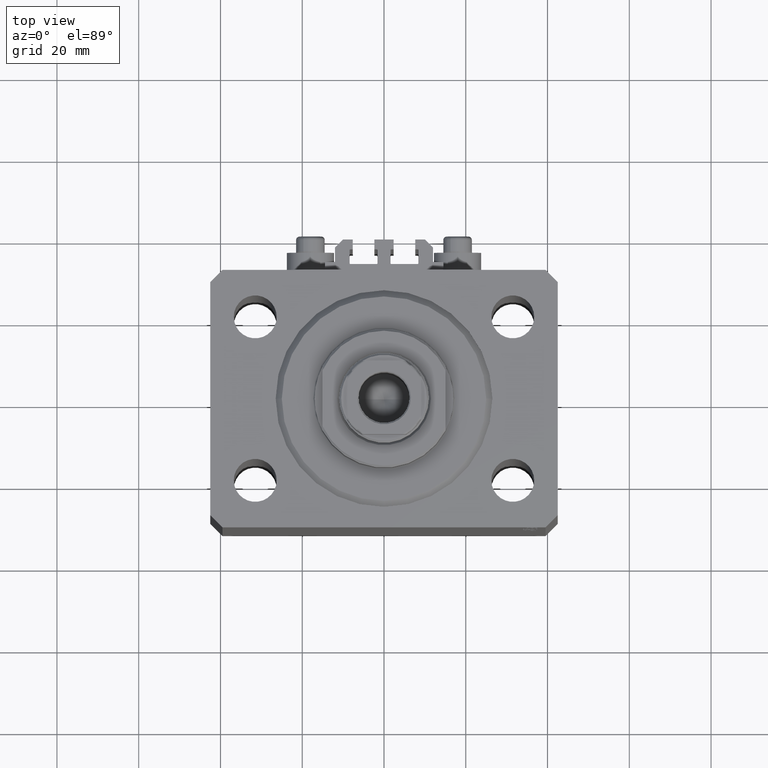
[diagram: clean part render]
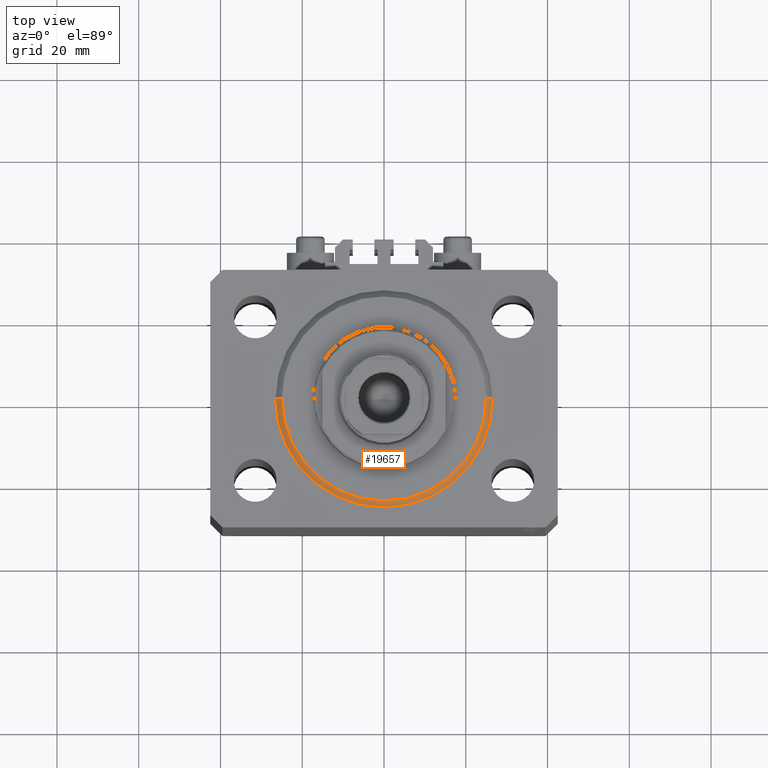
[diagram: same view with one face highlighted and labeled with its STEP entity id]
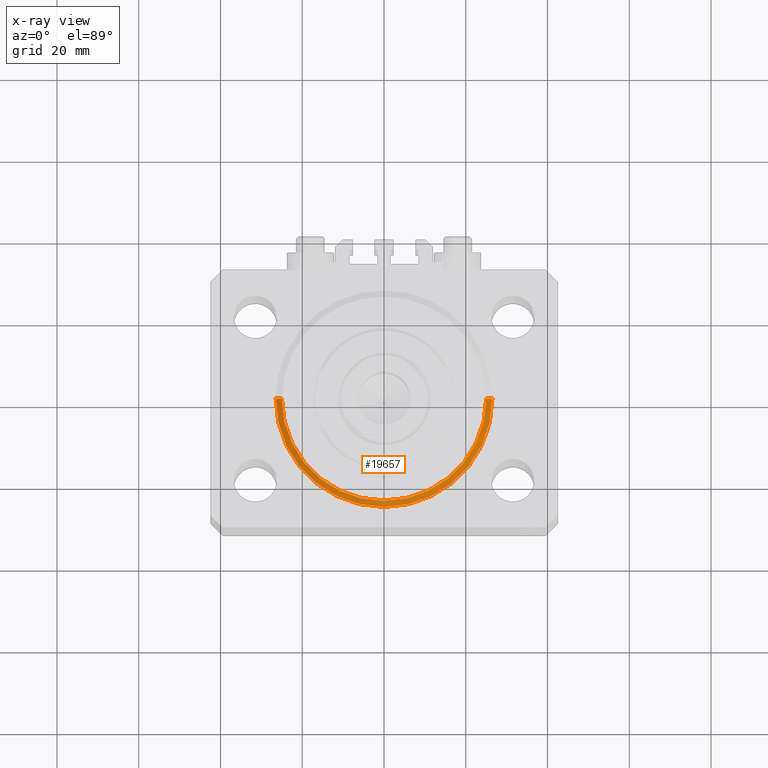
[diagram: x-ray of the same camera — body ghosted, the highlighted face saturated]
A machine part, top view. The second image highlights one B-rep face of the part: STEP entity #19657.
The next image is the same camera in x-ray: the body ghosted, the highlighted face saturated — about 0% of this face is hidden behind the body in this view.
In plain terms, the highlighted conical surface has half-angle 45 deg.
Its self-contained STEP definition (entity closure, byte-faithful):
#441 = CARTESIAN_POINT ( 'NONE',  ( -26.50000000000000355, 3.245314017740486554E-15, 1.500000000000018652 ) ) ;
#1043 = EDGE_CURVE ( 'NONE', #23999, #30568, #23873, .T. ) ;
#2196 = CARTESIAN_POINT ( 'NONE',  ( 26.50000000000000355, 0.000000000000000000, 1.500000000000018652 ) ) ;
#4497 = DIRECTION ( 'NONE',  ( -0.7071067811865483499, 8.659560562354942719E-17, 0.7071067811865466846 ) ) ;
#4726 = ORIENTED_EDGE ( 'NONE', *, *, #27195, .F. ) ;
#5779 = DIRECTION ( 'NONE',  ( -0.000000000000000000, -0.000000000000000000, -1.000000000000000000 ) ) ;
#6685 = DIRECTION ( 'NONE',  ( 1.000000000000000000, 0.000000000000000000, 0.000000000000000000 ) ) ;
#7505 = ORIENTED_EDGE ( 'NONE', *, *, #37310, .F. ) ;
#8733 = VERTEX_POINT ( 'NONE', #41649 ) ;
#9825 = DIRECTION ( 'NONE',  ( -0.000000000000000000, -0.000000000000000000, 1.000000000000000000 ) ) ;
#11304 = CARTESIAN_POINT ( 'NONE',  ( 26.50000000000000355, 3.245314017740486554E-15, 1.500000000000018652 ) ) ;
#14399 = FACE_OUTER_BOUND ( 'NONE', #22730, .T. ) ;
#15388 = ORIENTED_EDGE ( 'NONE', *, *, #1043, .F. ) ;
#16871 = CARTESIAN_POINT ( 'NONE',  ( -24.99999999999998224, 3.153465507804433615E-15, 0.000000000000000000 ) ) ;
#19657 = ADVANCED_FACE ( 'NONE', ( #14399 ), #40517, .T. ) ;
#20339 = ORIENTED_EDGE ( 'NONE', *, *, #22879, .T. ) ;
#20391 = DIRECTION ( 'NONE',  ( 1.000000000000000000, 0.000000000000000000, 0.000000000000000000 ) ) ;
#20621 = LINE ( 'NONE', #2196, #38926 ) ;
#22730 = EDGE_LOOP ( 'NONE', ( #7505, #15388, #20339, #4726 ) ) ;
#22879 = EDGE_CURVE ( 'NONE', #23999, #46511, #20621, .T. ) ;
#23786 = CARTESIAN_POINT ( 'NONE',  ( 24.99999999999998224, 0.000000000000000000, 0.000000000000000000 ) ) ;
#23873 = CIRCLE ( 'NONE', #43737, 24.99999999999998224 ) ;
#23999 = VERTEX_POINT ( 'NONE', #23786 ) ;
#24943 = DIRECTION ( 'NONE',  ( 1.000000000000000000, 0.000000000000000000, 0.000000000000000000 ) ) ;
#24964 = AXIS2_PLACEMENT_3D ( 'NONE', #39484, #9825, #6685 ) ;
#27195 = EDGE_CURVE ( 'NONE', #8733, #46511, #31089, .T. ) ;
#29013 = DIRECTION ( 'NONE',  ( -0.000000000000000000, -0.000000000000000000, 1.000000000000000000 ) ) ;
#30568 = VERTEX_POINT ( 'NONE', #16871 ) ;
#31089 = CIRCLE ( 'NONE', #24964, 26.50000000000000355 ) ;
#33227 = LINE ( 'NONE', #441, #33570 ) ;
#33570 = VECTOR ( 'NONE', #4497, 1000.000000000000000 ) ;
#37310 = EDGE_CURVE ( 'NONE', #30568, #8733, #33227, .T. ) ;
#38593 = CARTESIAN_POINT ( 'NONE',  ( 0.000000000000000000, 0.000000000000000000, 0.000000000000000000 ) ) ;
#38926 = VECTOR ( 'NONE', #39505, 1000.000000000000000 ) ;
#39484 = CARTESIAN_POINT ( 'NONE',  ( 0.000000000000000000, 0.000000000000000000, 1.500000000000018652 ) ) ;
#39505 = DIRECTION ( 'NONE',  ( 0.7071067811865483499, 0.000000000000000000, 0.7071067811865466846 ) ) ;
#39534 = CARTESIAN_POINT ( 'NONE',  ( 0.000000000000000000, 0.000000000000000000, 1.500000000000018652 ) ) ;
#40517 = CONICAL_SURFACE ( 'NONE', #45094, 26.50000000000000355, 0.7853981633974495002 ) ;
#41649 = CARTESIAN_POINT ( 'NONE',  ( -26.50000000000000355, 0.000000000000000000, 1.500000000000018652 ) ) ;
#43737 = AXIS2_PLACEMENT_3D ( 'NONE', #38593, #5779, #20391 ) ;
#45094 = AXIS2_PLACEMENT_3D ( 'NONE', #39534, #29013, #24943 ) ;
#46511 = VERTEX_POINT ( 'NONE', #11304 ) ;